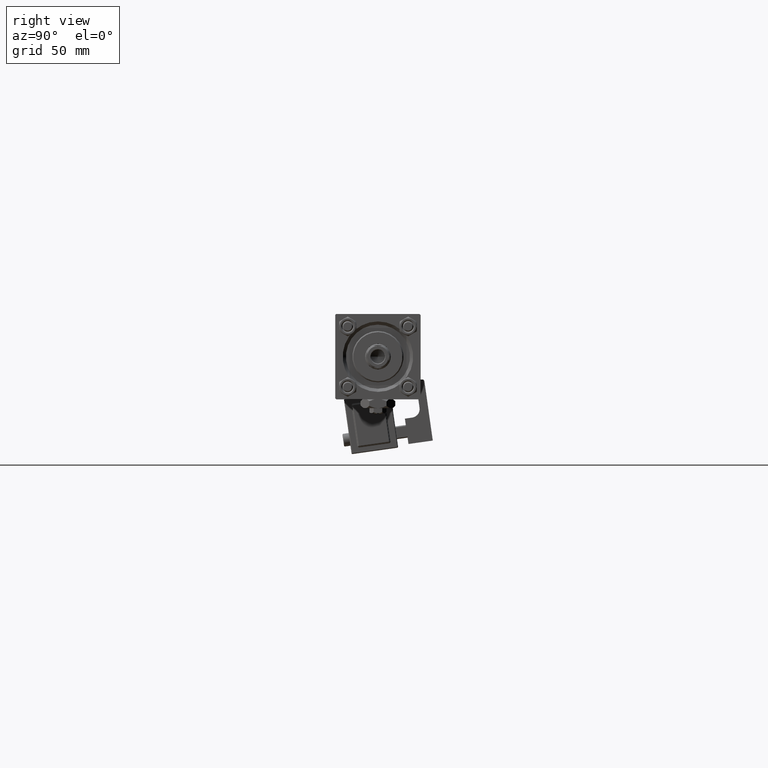
[diagram: clean part render]
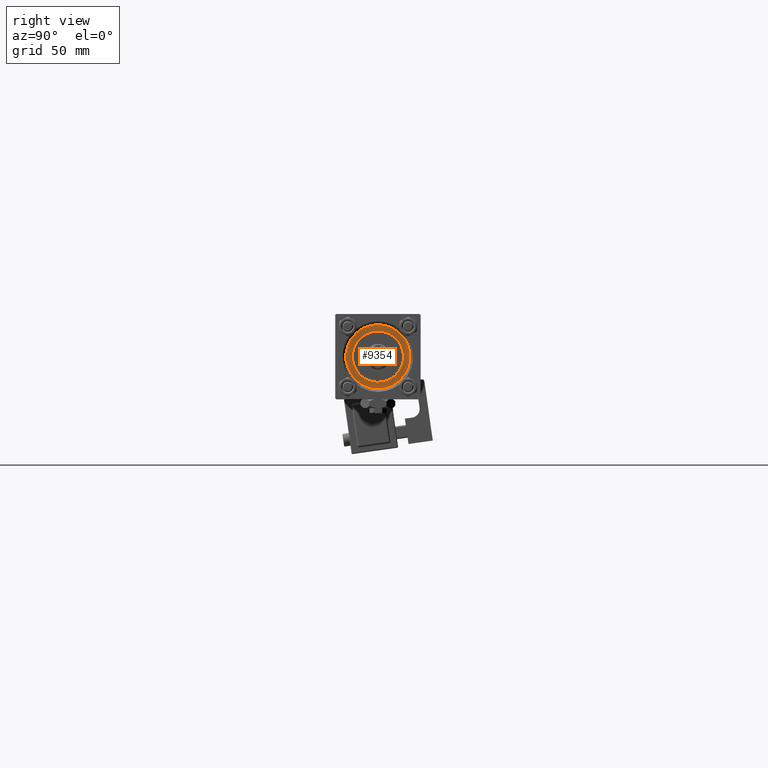
[diagram: same view with one face highlighted and labeled with its STEP entity id]
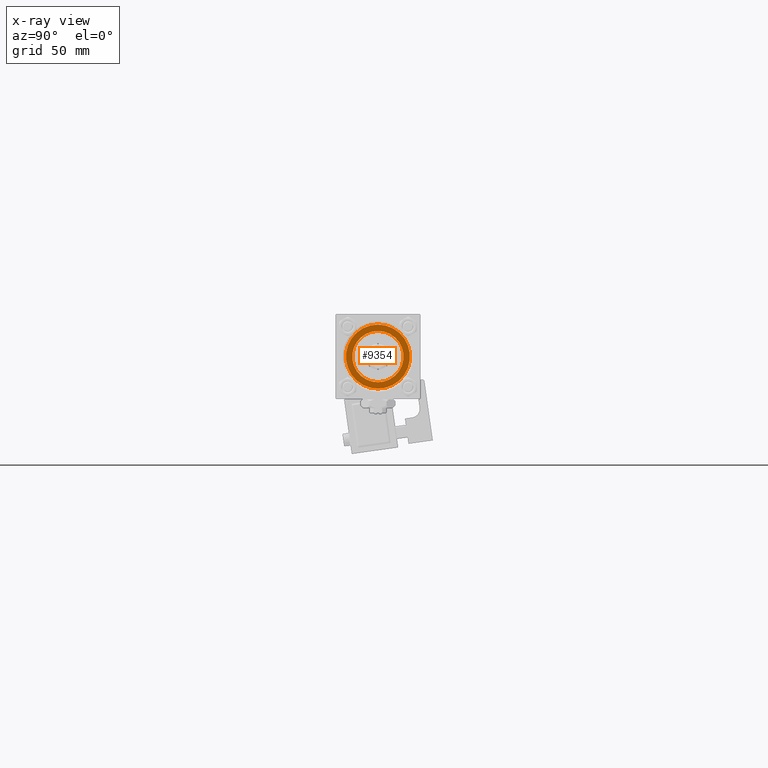
[diagram: x-ray of the same camera — body ghosted, the highlighted face saturated]
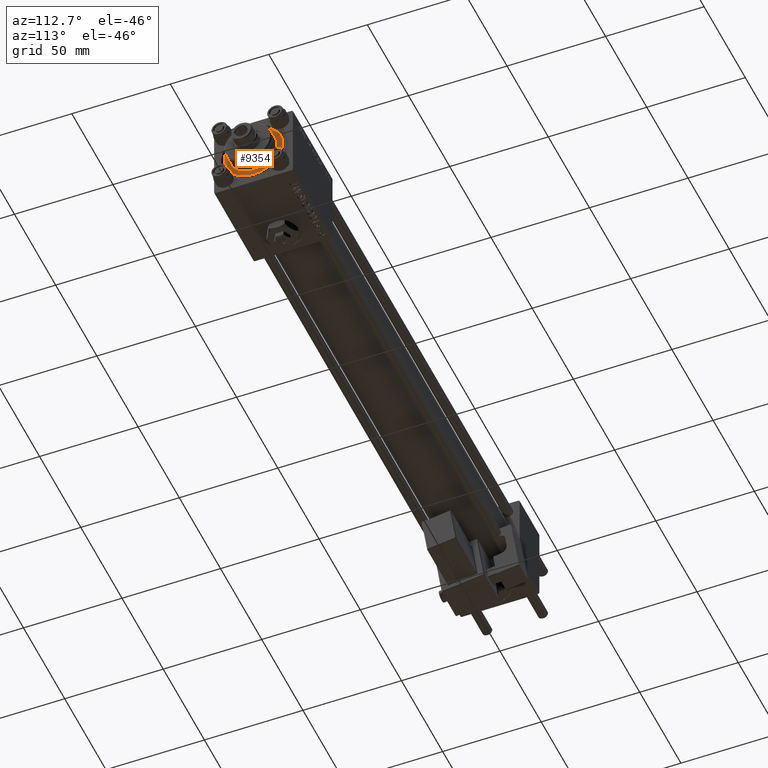
[diagram: same view with one face highlighted and labeled with its STEP entity id]
A machine part, right view. The second image highlights one B-rep face of the part: STEP entity #9354.
The next image is the same camera in x-ray: the body ghosted, the highlighted face saturated — about 0% of this face is hidden behind the body in this view.
A second angle (auxiliary view) of the same face is appended — the face is thin or edge-on in the first view.
In plain terms, the highlighted planar face has unit normal (1, 0, -0).
Its self-contained STEP definition (entity closure, byte-faithful):
#2934 = CARTESIAN_POINT ( 'NONE',  ( 0.000000000000000000, 0.000000000000000000, 28.69999999999999929 ) ) ;
#4360 = CARTESIAN_POINT ( 'NONE',  ( -15.00000000000000000, 0.000000000000000000, 28.69999999999999929 ) ) ;
#6586 = PLANE ( 'NONE',  #14837 ) ;
#7647 = DIRECTION ( 'NONE',  ( 1.000000000000000000, 0.000000000000000000, -0.000000000000000000 ) ) ;
#8381 = DIRECTION ( 'NONE',  ( 0.000000000000000000, 0.000000000000000000, 1.000000000000000000 ) ) ;
#9354 = ADVANCED_FACE ( 'NONE', ( #36371, #40203 ), #6586, .T. ) ;
#9709 = EDGE_LOOP ( 'NONE', ( #34684, #28225 ) ) ;
#10714 = DIRECTION ( 'NONE',  ( 1.000000000000000000, 0.000000000000000000, 0.000000000000000000 ) ) ;
#11755 = DIRECTION ( 'NONE',  ( 0.000000000000000000, 0.000000000000000000, 1.000000000000000000 ) ) ;
#11768 = CARTESIAN_POINT ( 'NONE',  ( 0.000000000000000000, 0.000000000000000000, 28.69999999999999929 ) ) ;
#14837 = AXIS2_PLACEMENT_3D ( 'NONE', #19424, #11755, #7647 ) ;
#16064 = VERTEX_POINT ( 'NONE', #41748 ) ;
#16139 = DIRECTION ( 'NONE',  ( 0.000000000000000000, 0.000000000000000000, 1.000000000000000000 ) ) ;
#16785 = EDGE_LOOP ( 'NONE', ( #43879, #27243 ) ) ;
#18383 = CARTESIAN_POINT ( 'NONE',  ( 0.000000000000000000, 0.000000000000000000, 28.69999999999999929 ) ) ;
#19424 = CARTESIAN_POINT ( 'NONE',  ( 0.000000000000000000, 0.000000000000000000, 28.69999999999999929 ) ) ;
#21208 = CARTESIAN_POINT ( 'NONE',  ( 12.00000000000000178, 1.469576158976824144E-15, 28.69999999999999929 ) ) ;
#23678 = AXIS2_PLACEMENT_3D ( 'NONE', #11768, #16139, #40485 ) ;
#24257 = AXIS2_PLACEMENT_3D ( 'NONE', #2934, #45274, #48841 ) ;
#26578 = DIRECTION ( 'NONE',  ( 0.000000000000000000, 0.000000000000000000, 1.000000000000000000 ) ) ;
#26984 = EDGE_CURVE ( 'NONE', #16064, #34870, #33850, .T. ) ;
#27060 = VERTEX_POINT ( 'NONE', #4360 ) ;
#27243 = ORIENTED_EDGE ( 'NONE', *, *, #47751, .F. ) ;
#28068 = CARTESIAN_POINT ( 'NONE',  ( 15.00000000000000000, 1.836970198721029589E-15, 28.69999999999999929 ) ) ;
#28225 = ORIENTED_EDGE ( 'NONE', *, *, #41277, .T. ) ;
#29654 = EDGE_CURVE ( 'NONE', #27060, #33918, #32098, .T. ) ;
#30895 = AXIS2_PLACEMENT_3D ( 'NONE', #33521, #8381, #37907 ) ;
#32098 = CIRCLE ( 'NONE', #24257, 15.00000000000000000 ) ;
#33521 = CARTESIAN_POINT ( 'NONE',  ( 0.000000000000000000, 0.000000000000000000, 28.69999999999999929 ) ) ;
#33850 = CIRCLE ( 'NONE', #39102, 12.00000000000000178 ) ;
#33918 = VERTEX_POINT ( 'NONE', #28068 ) ;
#34684 = ORIENTED_EDGE ( 'NONE', *, *, #29654, .T. ) ;
#34870 = VERTEX_POINT ( 'NONE', #21208 ) ;
#36371 = FACE_BOUND ( 'NONE', #16785, .T. ) ;
#37907 = DIRECTION ( 'NONE',  ( 1.000000000000000000, 0.000000000000000000, 0.000000000000000000 ) ) ;
#39102 = AXIS2_PLACEMENT_3D ( 'NONE', #18383, #26578, #10714 ) ;
#40203 = FACE_OUTER_BOUND ( 'NONE', #9709, .T. ) ;
#40485 = DIRECTION ( 'NONE',  ( 1.000000000000000000, 0.000000000000000000, 0.000000000000000000 ) ) ;
#41277 = EDGE_CURVE ( 'NONE', #33918, #27060, #50737, .T. ) ;
#41748 = CARTESIAN_POINT ( 'NONE',  ( -12.00000000000000178, 0.000000000000000000, 28.69999999999999929 ) ) ;
#43879 = ORIENTED_EDGE ( 'NONE', *, *, #26984, .F. ) ;
#44841 = CIRCLE ( 'NONE', #30895, 12.00000000000000178 ) ;
#45274 = DIRECTION ( 'NONE',  ( 0.000000000000000000, 0.000000000000000000, 1.000000000000000000 ) ) ;
#47751 = EDGE_CURVE ( 'NONE', #34870, #16064, #44841, .T. ) ;
#48841 = DIRECTION ( 'NONE',  ( 1.000000000000000000, 0.000000000000000000, 0.000000000000000000 ) ) ;
#50737 = CIRCLE ( 'NONE', #23678, 15.00000000000000000 ) ;